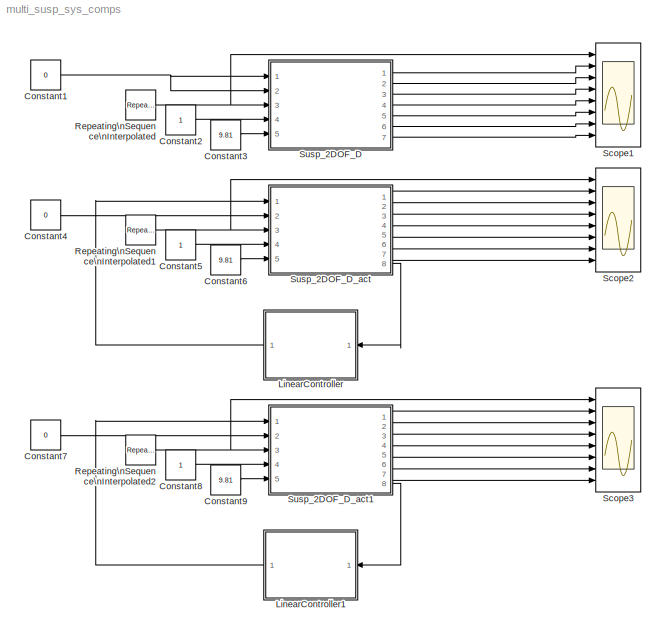
MODEL multi_susp_sys_comps
KIND model
BLOCK [Constant] Constant1
  SID = 155
  Value = 0
BLOCK [Constant] Constant2
  SID = 156
BLOCK [Constant] Constant3
  SID = 157
  Value = 9.81
BLOCK [Constant] Constant4
  SID = 161
  Value = 0
BLOCK [Constant] Constant5
  SID = 162
BLOCK [Constant] Constant6
  SID = 163
  Value = 9.81
BLOCK [Constant] Constant7
  SID = 171
  Value = 0
BLOCK [Constant] Constant8
  SID = 172
BLOCK [Constant] Constant9
  SID = 173
  Value = 9.81
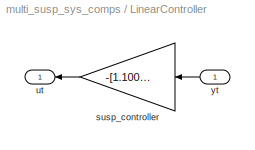
BLOCK [SubSystem] LinearController
  FunctionWithSeparateData = off
  MaskHideContents = off
  MinAlgLoopOccurrences = off
  Opaque = off
  Ports = [1, 1]
  PropExecContextOutsideSubsystem = off
  RTWSystemCode = Auto
  RequestExecContextInheritance = off
  SID = 168
BLOCK [Gain] LinearController/susp_controller
  Gain = -[1.1003 1.2676 6.0635 -0.7081 0 0]
  Multiplication = Matrix(K*u)
  OutDataTypeStr = Inherit: Inherit via internal rule
  ParamDataTypeStr = Inherit: Inherit via internal rule
  SID = 167
  SaturateOnIntegerOverflow = off
BLOCK [Outport] LinearController/ut
  IconDisplay = Port number
  SID = 170
BLOCK [Inport] LinearController/yt
  IconDisplay = Port number
  SID = 169
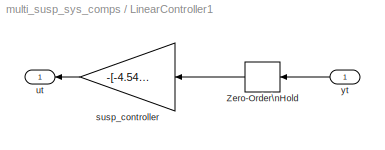
BLOCK [SubSystem] LinearController1
  FunctionWithSeparateData = off
  MaskHideContents = off
  MinAlgLoopOccurrences = off
  Opaque = off
  Ports = [1, 1]
  PropExecContextOutsideSubsystem = off
  RTWSystemCode = Auto
  RequestExecContextInheritance = off
  SID = 174
BLOCK [ZeroOrderHold] LinearController1/Zero-Order\nHold
  SID = 181
  SampleTime = 0.01
BLOCK [Gain] LinearController1/susp_controller
  Gain = -[-4.5469 1.7393 7 9.3078 0 0]
  Multiplication = Matrix(K*u)
  OutDataTypeStr = Inherit: Inherit via internal rule
  ParamDataTypeStr = Inherit: Inherit via internal rule
  SID = 176
  SaturateOnIntegerOverflow = off
BLOCK [Outport] LinearController1/ut
  IconDisplay = Port number
  SID = 177
BLOCK [Inport] LinearController1/yt
  IconDisplay = Port number
  SID = 175
BLOCK [Reference] Repeating\nSequence\nInterpolated  REF=simulink/Sources/Repeating\nSequence\nInterpolated
  FunctionWithSeparateData = off
  GeneratePreprocessorConditionals = off
  LockScale = off
  LookUpMeth = Interpolation-Use End Values
  OutDataType = fixdt(0,8)
  OutDataTypeStr = double
  OutMax = []
  OutMin = []
  OutScaling = 2^-10
  OutValues = [0 0.5 0 -0.5 0 -0.5 0 0.5 0].'
  OutputDataTypeScalingMode = double
  Ports = [0, 1]
  RTWMemSecDataConstants = Inherit from model
  RTWMemSecDataInternal = Inherit from model
  RTWMemSecDataParameters = Inherit from model
  RTWMemSecFuncExecute = Inherit from model
  RTWMemSecFuncInitTerm = Inherit from model
  SID = 158
  ShowPortLabels = FromPortIcon
  SourceBlock = simulink/Sources/Repeating\nSequence\nInterpolated
  SourceType = Repeating Sequence Interpolated
  SystemSampleTime = -1
  TimeValues = [0 0.1 0.2 0.3 0.4 0.6 0.7 0.8 0.9].'
  tsamp = 0.01
BLOCK [Reference] Repeating\nSequence\nInterpolated1  REF=simulink/Sources/Repeating\nSequence\nInterpolated
  FunctionWithSeparateData = off
  GeneratePreprocessorConditionals = off
  LockScale = off
  LookUpMeth = Interpolation-Use End Values
  OutDataType = fixdt(0,8)
  OutDataTypeStr = double
  OutMax = []
  OutMin = []
  OutScaling = 2^-10
  OutValues = [0 0.5 0 -0.5 0 -0.5 0 0.5 0].'
  OutputDataTypeScalingMode = double
  Ports = [0, 1]
  RTWMemSecDataConstants = Inherit from model
  RTWMemSecDataInternal = Inherit from model
  RTWMemSecDataParameters = Inherit from model
  RTWMemSecFuncExecute = Inherit from model
  RTWMemSecFuncInitTerm = Inherit from model
  SID = 164
  ShowPortLabels = FromPortIcon
  SourceBlock = simulink/Sources/Repeating\nSequence\nInterpolated
  SourceType = Repeating Sequence Interpolated
  SystemSampleTime = -1
  TimeValues = [0 0.1 0.2 0.3 0.4 0.6 0.7 0.8 0.9].'
  tsamp = 0.01
BLOCK [Reference] Repeating\nSequence\nInterpolated2  REF=simulink/Sources/Repeating\nSequence\nInterpolated
  FunctionWithSeparateData = off
  GeneratePreprocessorConditionals = off
  LockScale = off
  LookUpMeth = Interpolation-Use End Values
  OutDataType = fixdt(0,8)
  OutDataTypeStr = double
  OutMax = []
  OutMin = []
  OutScaling = 2^-10
  OutValues = [0 0.5 0 -0.5 0 -0.5 0 0.5 0].'
  OutputDataTypeScalingMode = double
  Ports = [0, 1]
  RTWMemSecDataConstants = Inherit from model
  RTWMemSecDataInternal = Inherit from model
  RTWMemSecDataParameters = Inherit from model
  RTWMemSecFuncExecute = Inherit from model
  RTWMemSecFuncInitTerm = Inherit from model
  SID = 178
  ShowPortLabels = FromPortIcon
  SourceBlock = simulink/Sources/Repeating\nSequence\nInterpolated
  SourceType = Repeating Sequence Interpolated
  SystemSampleTime = -1
  TimeValues = [0 0.1 0.2 0.3 0.4 0.6 0.7 0.8 0.9].'
  tsamp = 0.01
BLOCK [Scope] Scope1
  DataFormat = StructureWithTime
  Floating = off
  LimitDataPoints = off
  NumInputPorts = 8
  Ports = [8]
  SID = 159
  SampleTime = 0
  SaveToWorkspace = on
  YMax = 0.5~0.5~30~0.3~5~5~5~5
  YMin = -0.5~-0.5~-30~-0.9~-5~-5~-5~-5
  ZoomMode = yonly
BLOCK [Scope] Scope2
  DataFormat = StructureWithTime
  Floating = off
  LimitDataPoints = off
  NumInputPorts = 8
  Ports = [8]
  SID = 165
  SampleTime = 0
  SaveName = ScopeData1
  SaveToWorkspace = on
  YMax = 0.5~0.5~30~0.3~5~5~5~5
  YMin = -0.5~-0.5~-30~-0.9~-5~-5~-5~-5
  ZoomMode = yonly
BLOCK [Scope] Scope3
  DataFormat = StructureWithTime
  Floating = off
  LimitDataPoints = off
  NumInputPorts = 8
  Ports = [8]
  SID = 179
  SampleTime = 0
  SaveName = ScopeData2
  SaveToWorkspace = on
  YMax = 0.5~0.5~30~0.3~5~5~5~5
  YMin = -0.5~-0.5~-30~-0.9~-5~-5~-5~-5
  ZoomMode = yonly
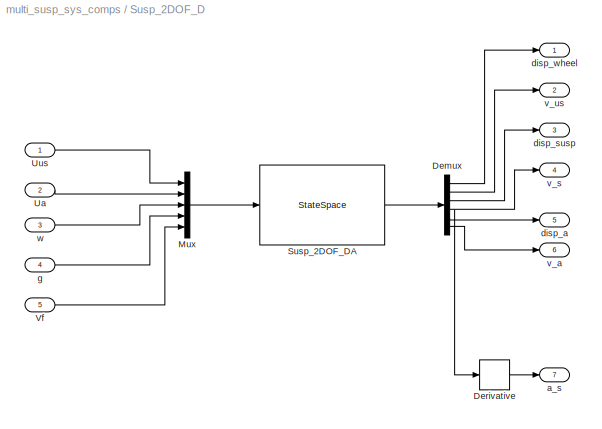
BLOCK [SubSystem] Susp_2DOF_D
  AncestorBlock = suspension_lib/Suspension:G(s)
  FunctionWithSeparateData = off
  MaskCallbackString = ||||||||
  MaskEnableString = on,on,on,on,on,on,on,on,on
  MaskHideContents = off
  MaskIconFrame = on
  MaskIconOpaque = on
  MaskIconRotate = none
  MaskIconUnits = autoscale
  MaskInitialization = w = sqrt( k_us / m_us );\nw_us = sqrt( k_us / m_us );\nrho = m_s / m_us;\nrho_a = 0;\ng = 9.81; % m/s^2 gravitational acceleration\n\n% m_s == 0 and m_us == 0 are not allowed\n% Work around possible divide by zero when m_a == 0\n%  build A by rows\nA = [0 1 0 0 0 0]; \nA = [A; -(k_us/m_us) (-b_s/m_us)+(b_us/m_us) (k_s/m_us) (b_s/m_us) 0 0]; \nA = [A; 0 -1 0 1 0 0]; \nA = [A; 0 (b_s/m_s) -(k_s/m_s)...<+984ch>  <repeated x3 — deduplicated; at blocks: Susp_2DOF_D, Susp_2DOF_D_act, Susp_2DOF_D_act1>
  MaskPortRotate = default
  MaskPromptString = Sprung mass (kg)|Sprung mass spring constant (N/m)|Sprung mass damping coefficient (N s/m)|Unsprung mass (kg)|Unsprung mass spring constant (N/m)|Unsprung mass damping coefficient (N s/m)|Damper mass (kg)|Damper spring constant (N/m)|Damper damping coeff (N s/m)  <repeated x3 — deduplicated; at blocks: Susp_2DOF_D, Susp_2DOF_D_act, Susp_2DOF_D_act1>
  MaskStyleString = edit,edit,edit,edit,edit,edit,edit,edit,edit
  MaskToolTipString = on,on,on,on,on,on,on,on,on
  MaskTunableValueString = on,on,on,on,on,on,on,on,on
  MaskValueString = 25000|60000|3500|413|65096.03|15000|0|0|0
  MaskVariables = m_s=@1;k_s=@2;b_s=@3;m_us=@4;k_us=@5;b_us=@6;m_a=@7;k_a=@8;b_a=@9;
  MaskVisibilityString = on,on,on,on,on,on,on,on,on
  MinAlgLoopOccurrences = off
  Opaque = off
  Ports = [5, 7]
  PropExecContextOutsideSubsystem = off
  RTWSystemCode = Auto
  RequestExecContextInheritance = off
  SID = 160
BLOCK [Demux] Susp_2DOF_D/Demux
  DisplayOption = bar
  Outputs = 6
  Ports = [1, 6]
  SID = 160:47
BLOCK [Derivative] Susp_2DOF_D/Derivative
  SID = 160:55
BLOCK [Mux] Susp_2DOF_D/Mux
  DisplayOption = bar
  Inputs = 5
  Ports = [5, 1]
  SID = 160:46
BLOCK [StateSpace] Susp_2DOF_D/Susp_2DOF_DA
  A = A
  B = B
  C = eye(6)
  D = zeros(6,5)
  SID = 160:43
BLOCK [Inport] Susp_2DOF_D/Ua
  IconDisplay = Port number
  Port = 2
  SID = 160:44
BLOCK [Inport] Susp_2DOF_D/Uus
  IconDisplay = Port number
  SID = 160:38
BLOCK [Inport] Susp_2DOF_D/Vf
  IconDisplay = Port number
  Port = 5
  SID = 160:54
BLOCK [Outport] Susp_2DOF_D/a_s
  IconDisplay = Port number
  Port = 7
  SID = 160:56
BLOCK [Outport] Susp_2DOF_D/disp_a
  IconDisplay = Port number
  Port = 5
  SID = 160:51
BLOCK [Outport] Susp_2DOF_D/disp_susp
  IconDisplay = Port number
  Port = 3
  SID = 160:49
BLOCK [Outport] Susp_2DOF_D/disp_wheel
  IconDisplay = Port number
  SID = 160:42
BLOCK [Inport] Susp_2DOF_D/g
  IconDisplay = Port number
  Port = 4
  SID = 160:53
BLOCK [Outport] Susp_2DOF_D/v_a
  IconDisplay = Port number
  Port = 6
  SID = 160:52
BLOCK [Outport] Susp_2DOF_D/v_s
  IconDisplay = Port number
  Port = 4
  SID = 160:50
BLOCK [Outport] Susp_2DOF_D/v_us
  IconDisplay = Port number
  Port = 2
  SID = 160:48
BLOCK [Inport] Susp_2DOF_D/w
  IconDisplay = Port number
  Port = 3
  SID = 160:45
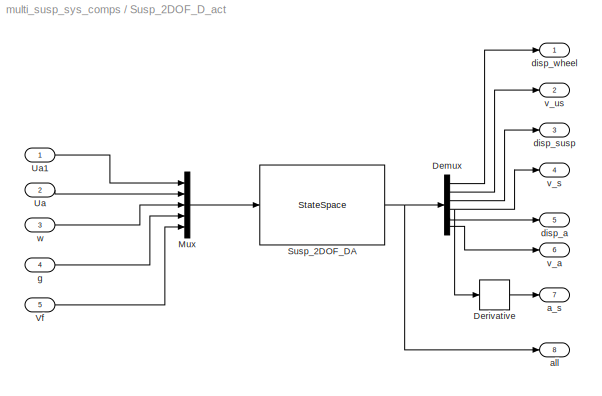
BLOCK [SubSystem] Susp_2DOF_D_act
  AncestorBlock = suspension_lib/Suspension:G(s)
  FunctionWithSeparateData = off
  MaskCallbackString = ||||||||
  MaskEnableString = on,on,on,on,on,on,on,on,on
  MaskHideContents = off
  MaskIconFrame = on
  MaskIconOpaque = on
  MaskIconRotate = none
  MaskIconUnits = autoscale
  MaskPortRotate = default
  MaskStyleString = edit,edit,edit,edit,edit,edit,edit,edit,edit
  MaskToolTipString = on,on,on,on,on,on,on,on,on
  MaskTunableValueString = on,on,on,on,on,on,on,on,on
  MaskValueString = 25000|60000|3500|413|65096.03|15000|0|0|0
  MaskVariables = m_s=@1;k_s=@2;b_s=@3;m_us=@4;k_us=@5;b_us=@6;m_a=@7;k_a=@8;b_a=@9;
  MaskVisibilityString = on,on,on,on,on,on,on,on,on
  MinAlgLoopOccurrences = off
  Opaque = off
  Ports = [5, 8]
  PropExecContextOutsideSubsystem = off
  RTWSystemCode = Auto
  RequestExecContextInheritance = off
  SID = 166
BLOCK [Demux] Susp_2DOF_D_act/Demux
  DisplayOption = bar
  Outputs = 6
  Ports = [1, 6]
  SID = 166:47
BLOCK [Derivative] Susp_2DOF_D_act/Derivative
  SID = 166:55
BLOCK [Mux] Susp_2DOF_D_act/Mux
  DisplayOption = bar
  Inputs = 5
  Ports = [5, 1]
  SID = 166:46
BLOCK [StateSpace] Susp_2DOF_D_act/Susp_2DOF_DA
  A = A
  B = B
  C = eye(6)
  D = zeros(6,5)
  SID = 166:43
BLOCK [Inport] Susp_2DOF_D_act/Ua
  IconDisplay = Port number
  Port = 2
  SID = 166:44
BLOCK [Inport] Susp_2DOF_D_act/Ua1
  IconDisplay = Port number
  SID = 166:60
BLOCK [Inport] Susp_2DOF_D_act/Vf
  IconDisplay = Port number
  Port = 5
  SID = 166:54
BLOCK [Outport] Susp_2DOF_D_act/a_s
  IconDisplay = Port number
  Port = 7
  SID = 166:56
BLOCK [Outport] Susp_2DOF_D_act/all
  IconDisplay = Port number
  Port = 8
  SID = 166:61
BLOCK [Outport] Susp_2DOF_D_act/disp_a
  IconDisplay = Port number
  Port = 5
  SID = 166:51
BLOCK [Outport] Susp_2DOF_D_act/disp_susp
  IconDisplay = Port number
  Port = 3
  SID = 166:49
BLOCK [Outport] Susp_2DOF_D_act/disp_wheel
  IconDisplay = Port number
  SID = 166:42
BLOCK [Inport] Susp_2DOF_D_act/g
  IconDisplay = Port number
  Port = 4
  SID = 166:53
BLOCK [Outport] Susp_2DOF_D_act/v_a
  IconDisplay = Port number
  Port = 6
  SID = 166:52
BLOCK [Outport] Susp_2DOF_D_act/v_s
  IconDisplay = Port number
  Port = 4
  SID = 166:50
BLOCK [Outport] Susp_2DOF_D_act/v_us
  IconDisplay = Port number
  Port = 2
  SID = 166:48
BLOCK [Inport] Susp_2DOF_D_act/w
  IconDisplay = Port number
  Port = 3
  SID = 166:45
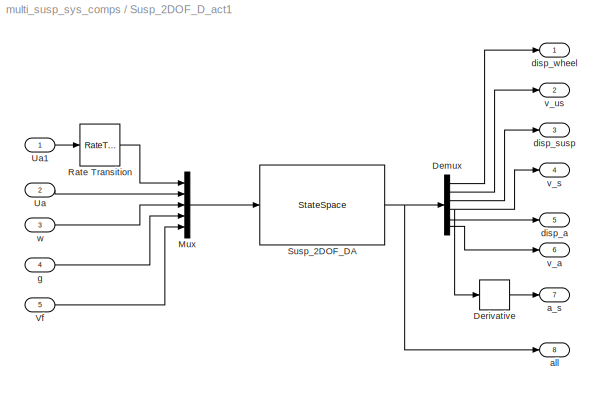
BLOCK [SubSystem] Susp_2DOF_D_act1
  AncestorBlock = suspension_lib/Suspension:G(s)
  FunctionWithSeparateData = off
  MaskCallbackString = ||||||||
  MaskEnableString = on,on,on,on,on,on,on,on,on
  MaskHideContents = off
  MaskIconFrame = on
  MaskIconOpaque = on
  MaskIconRotate = none
  MaskIconUnits = autoscale
  MaskPortRotate = default
  MaskStyleString = edit,edit,edit,edit,edit,edit,edit,edit,edit
  MaskToolTipString = on,on,on,on,on,on,on,on,on
  MaskTunableValueString = on,on,on,on,on,on,on,on,on
  MaskValueString = 25000|60000|3500|413|65096.03|15000|0|0|0
  MaskVariables = m_s=@1;k_s=@2;b_s=@3;m_us=@4;k_us=@5;b_us=@6;m_a=@7;k_a=@8;b_a=@9;
  MaskVisibilityString = on,on,on,on,on,on,on,on,on
  MinAlgLoopOccurrences = off
  Opaque = off
  Ports = [5, 8]
  PropExecContextOutsideSubsystem = off
  RTWSystemCode = Auto
  RequestExecContextInheritance = off
  SID = 180
BLOCK [Demux] Susp_2DOF_D_act1/Demux
  DisplayOption = bar
  Outputs = 6
  Ports = [1, 6]
  SID = 180:47
BLOCK [Derivative] Susp_2DOF_D_act1/Derivative
  SID = 180:55
BLOCK [Mux] Susp_2DOF_D_act1/Mux
  DisplayOption = bar
  Inputs = 5
  Ports = [5, 1]
  SID = 180:46
BLOCK [RateTransition] Susp_2DOF_D_act1/Rate Transition
  SID = 180:63
BLOCK [StateSpace] Susp_2DOF_D_act1/Susp_2DOF_DA
  A = A
  B = B
  C = eye(6)
  D = zeros(6,5)
  SID = 180:43
BLOCK [Inport] Susp_2DOF_D_act1/Ua
  IconDisplay = Port number
  Port = 2
  SID = 180:44
BLOCK [Inport] Susp_2DOF_D_act1/Ua1
  IconDisplay = Port number
  SID = 180:60
BLOCK [Inport] Susp_2DOF_D_act1/Vf
  IconDisplay = Port number
  Port = 5
  SID = 180:54
BLOCK [Outport] Susp_2DOF_D_act1/a_s
  IconDisplay = Port number
  Port = 7
  SID = 180:56
BLOCK [Outport] Susp_2DOF_D_act1/all
  IconDisplay = Port number
  Port = 8
  SID = 180:61
BLOCK [Outport] Susp_2DOF_D_act1/disp_a
  IconDisplay = Port number
  Port = 5
  SID = 180:51
BLOCK [Outport] Susp_2DOF_D_act1/disp_susp
  IconDisplay = Port number
  Port = 3
  SID = 180:49
BLOCK [Outport] Susp_2DOF_D_act1/disp_wheel
  IconDisplay = Port number
  SID = 180:42
BLOCK [Inport] Susp_2DOF_D_act1/g
  IconDisplay = Port number
  Port = 4
  SID = 180:53
BLOCK [Outport] Susp_2DOF_D_act1/v_a
  IconDisplay = Port number
  Port = 6
  SID = 180:52
BLOCK [Outport] Susp_2DOF_D_act1/v_s
  IconDisplay = Port number
  Port = 4
  SID = 180:50
BLOCK [Outport] Susp_2DOF_D_act1/v_us
  IconDisplay = Port number
  Port = 2
  SID = 180:48
BLOCK [Inport] Susp_2DOF_D_act1/w
  IconDisplay = Port number
  Port = 3
  SID = 180:45
NET Constant1:1 -> Susp_2DOF_D:1, Susp_2DOF_D:2
LINE Constant2:1 -> Susp_2DOF_D:4
LINE Constant3:1 -> Susp_2DOF_D:5
LINE Constant4:1 -> Susp_2DOF_D_act:2
LINE Constant5:1 -> Susp_2DOF_D_act:4
LINE Constant6:1 -> Susp_2DOF_D_act:5
LINE Constant7:1 -> Susp_2DOF_D_act1:2
LINE Constant8:1 -> Susp_2DOF_D_act1:4
LINE Constant9:1 -> Susp_2DOF_D_act1:5
LINE LinearController/susp_controller:1 -> LinearController/ut:1
LINE LinearController/yt:1 -> LinearController/susp_controller:1
LINE LinearController1/Zero-Order\nHold:1 -> LinearController1/susp_controller:1
LINE LinearController1/susp_controller:1 -> LinearController1/ut:1
LINE LinearController1/yt:1 -> LinearController1/Zero-Order\nHold:1
LINE LinearController1:1 -> Susp_2DOF_D_act1:1
LINE LinearController:1 -> Susp_2DOF_D_act:1
NET Repeating\nSequence\nInterpolated1:1 -> Scope2:1, Susp_2DOF_D_act:3
NET Repeating\nSequence\nInterpolated2:1 -> Scope3:1, Susp_2DOF_D_act1:3
NET Repeating\nSequence\nInterpolated:1 -> Scope1:1, Susp_2DOF_D:3
LINE Susp_2DOF_D/Demux:1 -> Susp_2DOF_D/disp_wheel:1
LINE Susp_2DOF_D/Demux:2 -> Susp_2DOF_D/v_us:1
LINE Susp_2DOF_D/Demux:3 -> Susp_2DOF_D/disp_susp:1
NET Susp_2DOF_D/Demux:4 -> Susp_2DOF_D/Derivative:1, Susp_2DOF_D/v_s:1
LINE Susp_2DOF_D/Demux:5 -> Susp_2DOF_D/disp_a:1
LINE Susp_2DOF_D/Demux:6 -> Susp_2DOF_D/v_a:1
LINE Susp_2DOF_D/Derivative:1 -> Susp_2DOF_D/a_s:1
LINE Susp_2DOF_D/Mux:1 -> Susp_2DOF_D/Susp_2DOF_DA:1
LINE Susp_2DOF_D/Susp_2DOF_DA:1 -> Susp_2DOF_D/Demux:1
LINE Susp_2DOF_D/Ua:1 -> Susp_2DOF_D/Mux:2
LINE Susp_2DOF_D/Uus:1 -> Susp_2DOF_D/Mux:1
LINE Susp_2DOF_D/Vf:1 -> Susp_2DOF_D/Mux:5
LINE Susp_2DOF_D/g:1 -> Susp_2DOF_D/Mux:4
LINE Susp_2DOF_D/w:1 -> Susp_2DOF_D/Mux:3
LINE Susp_2DOF_D:1 -> Scope1:2
LINE Susp_2DOF_D:2 -> Scope1:3
LINE Susp_2DOF_D:3 -> Scope1:4
LINE Susp_2DOF_D:4 -> Scope1:5
LINE Susp_2DOF_D:5 -> Scope1:6
LINE Susp_2DOF_D:6 -> Scope1:7
LINE Susp_2DOF_D:7 -> Scope1:8
LINE Susp_2DOF_D_act/Demux:1 -> Susp_2DOF_D_act/disp_wheel:1
LINE Susp_2DOF_D_act/Demux:2 -> Susp_2DOF_D_act/v_us:1
LINE Susp_2DOF_D_act/Demux:3 -> Susp_2DOF_D_act/disp_susp:1
NET Susp_2DOF_D_act/Demux:4 -> Susp_2DOF_D_act/Derivative:1, Susp_2DOF_D_act/v_s:1
LINE Susp_2DOF_D_act/Demux:5 -> Susp_2DOF_D_act/disp_a:1
LINE Susp_2DOF_D_act/Demux:6 -> Susp_2DOF_D_act/v_a:1
LINE Susp_2DOF_D_act/Derivative:1 -> Susp_2DOF_D_act/a_s:1
LINE Susp_2DOF_D_act/Mux:1 -> Susp_2DOF_D_act/Susp_2DOF_DA:1
NET Susp_2DOF_D_act/Susp_2DOF_DA:1 -> Susp_2DOF_D_act/Demux:1, Susp_2DOF_D_act/all:1
LINE Susp_2DOF_D_act/Ua1:1 -> Susp_2DOF_D_act/Mux:1
LINE Susp_2DOF_D_act/Ua:1 -> Susp_2DOF_D_act/Mux:2
LINE Susp_2DOF_D_act/Vf:1 -> Susp_2DOF_D_act/Mux:5
LINE Susp_2DOF_D_act/g:1 -> Susp_2DOF_D_act/Mux:4
LINE Susp_2DOF_D_act/w:1 -> Susp_2DOF_D_act/Mux:3
LINE Susp_2DOF_D_act1/Demux:1 -> Susp_2DOF_D_act1/disp_wheel:1
LINE Susp_2DOF_D_act1/Demux:2 -> Susp_2DOF_D_act1/v_us:1
LINE Susp_2DOF_D_act1/Demux:3 -> Susp_2DOF_D_act1/disp_susp:1
NET Susp_2DOF_D_act1/Demux:4 -> Susp_2DOF_D_act1/Derivative:1, Susp_2DOF_D_act1/v_s:1
LINE Susp_2DOF_D_act1/Demux:5 -> Susp_2DOF_D_act1/disp_a:1
LINE Susp_2DOF_D_act1/Demux:6 -> Susp_2DOF_D_act1/v_a:1
LINE Susp_2DOF_D_act1/Derivative:1 -> Susp_2DOF_D_act1/a_s:1
LINE Susp_2DOF_D_act1/Mux:1 -> Susp_2DOF_D_act1/Susp_2DOF_DA:1
LINE Susp_2DOF_D_act1/Rate Transition:1 -> Susp_2DOF_D_act1/Mux:1
NET Susp_2DOF_D_act1/Susp_2DOF_DA:1 -> Susp_2DOF_D_act1/Demux:1, Susp_2DOF_D_act1/all:1
LINE Susp_2DOF_D_act1/Ua1:1 -> Susp_2DOF_D_act1/Rate Transition:1
LINE Susp_2DOF_D_act1/Ua:1 -> Susp_2DOF_D_act1/Mux:2
LINE Susp_2DOF_D_act1/Vf:1 -> Susp_2DOF_D_act1/Mux:5
LINE Susp_2DOF_D_act1/g:1 -> Susp_2DOF_D_act1/Mux:4
LINE Susp_2DOF_D_act1/w:1 -> Susp_2DOF_D_act1/Mux:3
LINE Susp_2DOF_D_act1:1 -> Scope3:2
LINE Susp_2DOF_D_act1:2 -> Scope3:3
LINE Susp_2DOF_D_act1:3 -> Scope3:4
LINE Susp_2DOF_D_act1:4 -> Scope3:5
LINE Susp_2DOF_D_act1:5 -> Scope3:6
LINE Susp_2DOF_D_act1:6 -> Scope3:7
LINE Susp_2DOF_D_act1:7 -> Scope3:8
LINE Susp_2DOF_D_act1:8 -> LinearController1:1
LINE Susp_2DOF_D_act:1 -> Scope2:2
LINE Susp_2DOF_D_act:2 -> Scope2:3
LINE Susp_2DOF_D_act:3 -> Scope2:4
LINE Susp_2DOF_D_act:4 -> Scope2:5
LINE Susp_2DOF_D_act:5 -> Scope2:6
LINE Susp_2DOF_D_act:6 -> Scope2:7
LINE Susp_2DOF_D_act:7 -> Scope2:8
LINE Susp_2DOF_D_act:8 -> LinearController:1
note: NET lines group one-source signal fan-out (src -> all destinations, sorted); 1:1 wires keep LINE
